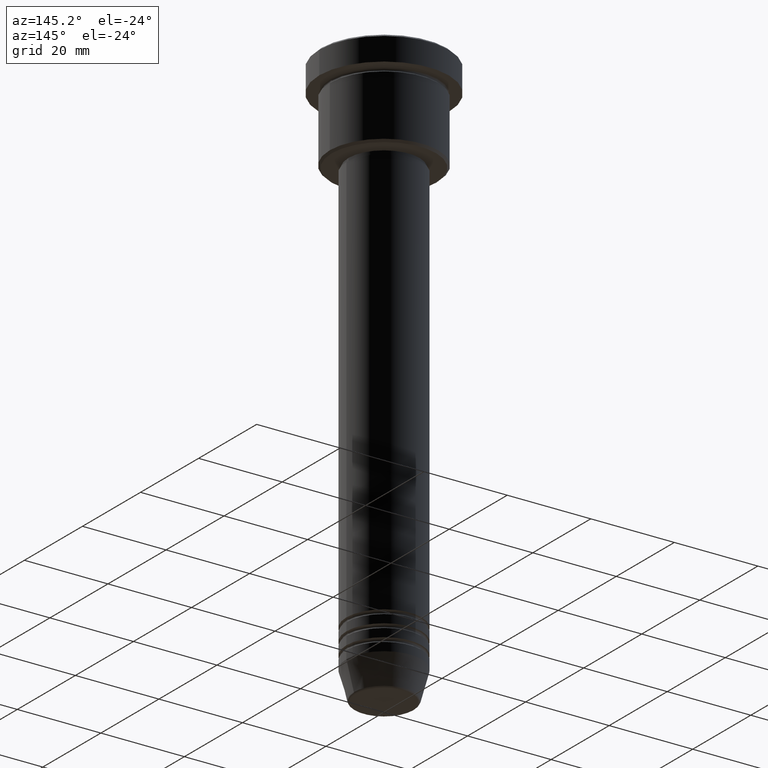
[diagram: clean part render]
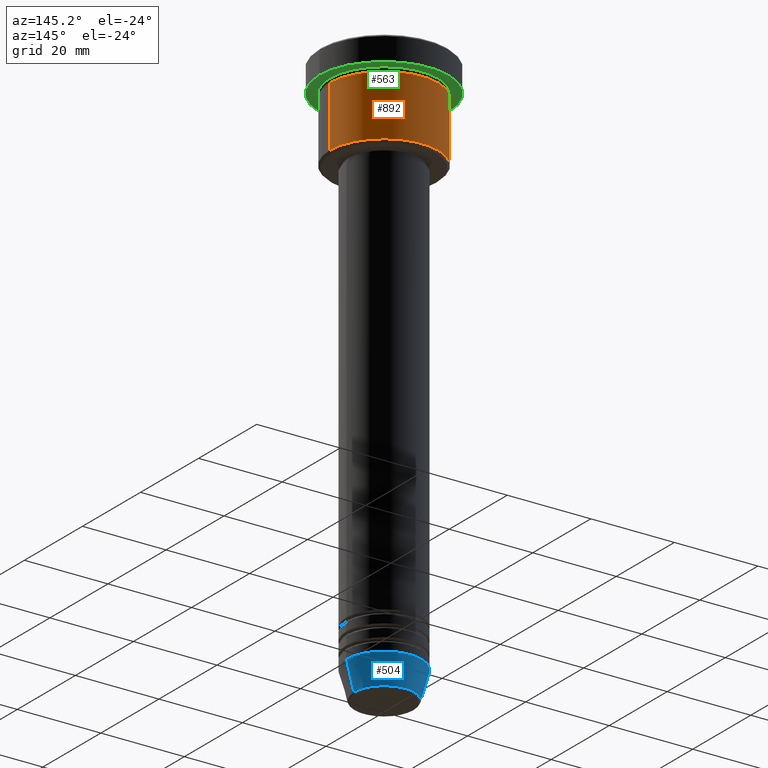
[diagram: same view with three faces highlighted in distinct colors, each labeled with its STEP entity id]
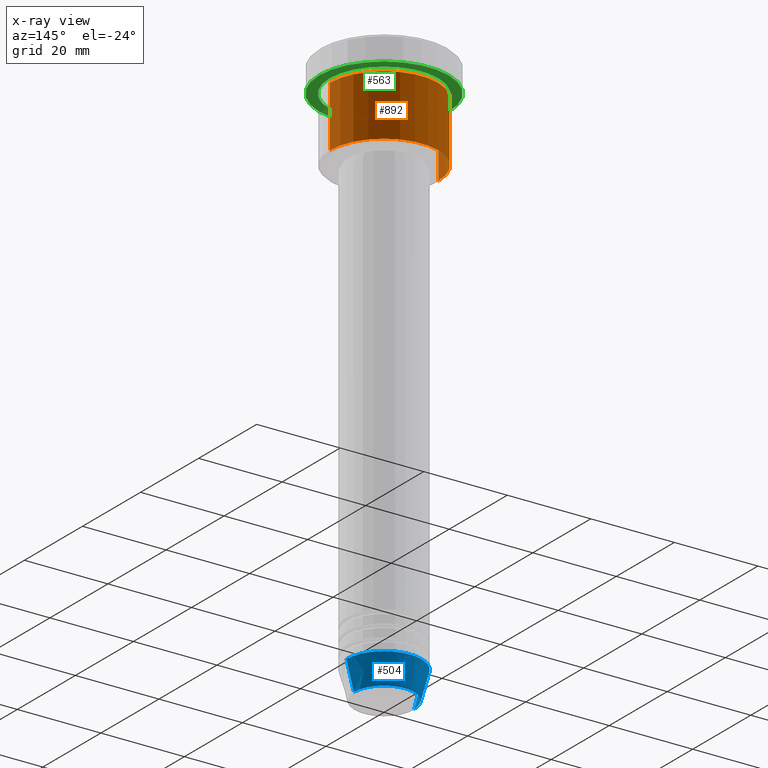
[diagram: x-ray of the same camera — body ghosted, the three highlighted faces saturated]
A machine part, auxiliary view with three faces highlighted in distinct colors.
The next image is the same camera in x-ray (body ghosted, the three faces saturated) — at least one of them is partly hidden behind the body in this view.
Their STEP definitions:

[orange] entity #892 — the highlighted cylindrical surface (partial cylindrical patch) has radius 13 mm, axis along (-0, -0, 1).
#6 = DIRECTION ( 'NONE',  ( -0.000000000000000000, -0.000000000000000000, 1.000000000000000000 ) ) ;
#8 = ORIENTED_EDGE ( 'NONE', *, *, #388, .F. ) ;
#16 = CARTESIAN_POINT ( 'NONE',  ( 0.000000000000000000, 0.000000000000000000, -6.999999999999995559 ) ) ;
#67 = CARTESIAN_POINT ( 'NONE',  ( 13.00000000000000000, 0.000000000000000000, -21.49999999999996092 ) ) ;
#107 = CARTESIAN_POINT ( 'NONE',  ( 13.00000000000000000, 0.000000000000000000, 0.000000000000000000 ) ) ;
#174 = CARTESIAN_POINT ( 'NONE',  ( -13.00000000000000000, 1.592040838891559095E-15, -21.49999999999996092 ) ) ;
#191 = DIRECTION ( 'NONE',  ( -0.000000000000000000, -0.000000000000000000, 1.000000000000000000 ) ) ;
#192 = CIRCLE ( 'NONE', #596, 13.00000000000000000 ) ;
#205 = FACE_OUTER_BOUND ( 'NONE', #300, .T. ) ;
#224 = DIRECTION ( 'NONE',  ( 1.000000000000000000, 0.000000000000000000, 0.000000000000000000 ) ) ;
#300 = EDGE_LOOP ( 'NONE', ( #303, #584, #8, #1044 ) ) ;
#303 = ORIENTED_EDGE ( 'NONE', *, *, #586, .T. ) ;
#320 = AXIS2_PLACEMENT_3D ( 'NONE', #16, #1035, #224 ) ;
#346 = DIRECTION ( 'NONE',  ( -0.000000000000000000, -0.000000000000000000, 1.000000000000000000 ) ) ;
#370 = DIRECTION ( 'NONE',  ( -0.000000000000000000, -0.000000000000000000, 1.000000000000000000 ) ) ;
#378 = CYLINDRICAL_SURFACE ( 'NONE', #997, 13.00000000000000000 ) ;
#388 = EDGE_CURVE ( 'NONE', #770, #832, #580, .T. ) ;
#477 = VECTOR ( 'NONE', #191, 1000.000000000000000 ) ;
#580 = CIRCLE ( 'NONE', #320, 13.00000000000000000 ) ;
#584 = ORIENTED_EDGE ( 'NONE', *, *, #928, .T. ) ;
#586 = EDGE_CURVE ( 'NONE', #1148, #828, #192, .T. ) ;
#596 = AXIS2_PLACEMENT_3D ( 'NONE', #890, #370, #790 ) ;
#601 = CARTESIAN_POINT ( 'NONE',  ( 13.00000000000000000, 0.000000000000000000, -6.999999999999995559 ) ) ;
#735 = DIRECTION ( 'NONE',  ( 1.000000000000000000, 0.000000000000000000, 0.000000000000000000 ) ) ;
#770 = VERTEX_POINT ( 'NONE', #601 ) ;
#790 = DIRECTION ( 'NONE',  ( -1.000000000000000000, 0.000000000000000000, 0.000000000000000000 ) ) ;
#820 = VECTOR ( 'NONE', #346, 1000.000000000000000 ) ;
#828 = VERTEX_POINT ( 'NONE', #174 ) ;
#832 = VERTEX_POINT ( 'NONE', #898 ) ;
#870 = EDGE_CURVE ( 'NONE', #1148, #770, #914, .T. ) ;
#890 = CARTESIAN_POINT ( 'NONE',  ( 0.000000000000000000, 0.000000000000000000, -21.49999999999996092 ) ) ;
#892 = ADVANCED_FACE ( 'NONE', ( #205 ), #378, .T. ) ;
#898 = CARTESIAN_POINT ( 'NONE',  ( -13.00000000000000000, 1.592040838891559095E-15, -6.999999999999995559 ) ) ;
#914 = LINE ( 'NONE', #107, #820 ) ;
#928 = EDGE_CURVE ( 'NONE', #828, #832, #1135, .T. ) ;
#997 = AXIS2_PLACEMENT_3D ( 'NONE', #1010, #6, #735 ) ;
#1010 = CARTESIAN_POINT ( 'NONE',  ( 0.000000000000000000, 0.000000000000000000, 0.000000000000000000 ) ) ;
#1035 = DIRECTION ( 'NONE',  ( -0.000000000000000000, -0.000000000000000000, 1.000000000000000000 ) ) ;
#1044 = ORIENTED_EDGE ( 'NONE', *, *, #870, .F. ) ;
#1135 = LINE ( 'NONE', #1163, #477 ) ;
#1148 = VERTEX_POINT ( 'NONE', #67 ) ;
#1163 = CARTESIAN_POINT ( 'NONE',  ( -13.00000000000000000, 1.592040838891559095E-15, 0.000000000000000000 ) ) ;

[blue] entity #504 — the highlighted conical surface has half-angle 15 deg.
#59 = FACE_OUTER_BOUND ( 'NONE', #221, .T. ) ;
#80 = CARTESIAN_POINT ( 'NONE',  ( 0.000000000000000000, 0.000000000000000000, -136.6294095225512990 ) ) ;
#221 = EDGE_LOOP ( 'NONE', ( #1168, #289, #573, #369 ) ) ;
#241 = VERTEX_POINT ( 'NONE', #893 ) ;
#289 = ORIENTED_EDGE ( 'NONE', *, *, #1069, .T. ) ;
#360 = DIRECTION ( 'NONE',  ( 0.2588190451025213501, 0.000000000000000000, 0.9659258262890680902 ) ) ;
#369 = ORIENTED_EDGE ( 'NONE', *, *, #827, .F. ) ;
#373 = DIRECTION ( 'NONE',  ( 1.000000000000000000, 0.000000000000000000, 0.000000000000000000 ) ) ;
#394 = AXIS2_PLACEMENT_3D ( 'NONE', #583, #848, #1041 ) ;
#415 = VECTOR ( 'NONE', #808, 1000.000000000000000 ) ;
#419 = VERTEX_POINT ( 'NONE', #933 ) ;
#442 = CARTESIAN_POINT ( 'NONE',  ( 9.000000000000000000, 0.000000000000000000, -130.0000000000000000 ) ) ;
#466 = CARTESIAN_POINT ( 'NONE',  ( -7.223655072137189492, 9.934123627281765110E-16, -136.6294095225512990 ) ) ;
#489 = DIRECTION ( 'NONE',  ( -0.000000000000000000, -0.000000000000000000, 1.000000000000000000 ) ) ;
#504 = ADVANCED_FACE ( 'NONE', ( #59 ), #1137, .T. ) ;
#535 = LINE ( 'NONE', #442, #715 ) ;
#567 = VERTEX_POINT ( 'NONE', #1072 ) ;
#573 = ORIENTED_EDGE ( 'NONE', *, *, #973, .F. ) ;
#583 = CARTESIAN_POINT ( 'NONE',  ( 0.000000000000000000, 0.000000000000000000, -130.0000000000000000 ) ) ;
#715 = VECTOR ( 'NONE', #360, 1000.000000000000000 ) ;
#765 = CIRCLE ( 'NONE', #1042, 7.223655072137188604 ) ;
#801 = CARTESIAN_POINT ( 'NONE',  ( -9.000000000000000000, 1.102182119232617714E-15, -130.0000000000000000 ) ) ;
#808 = DIRECTION ( 'NONE',  ( -0.2588190451025213501, 3.169619151431772337E-17, 0.9659258262890680902 ) ) ;
#809 = EDGE_CURVE ( 'NONE', #241, #1019, #765, .T. ) ;
#827 = EDGE_CURVE ( 'NONE', #241, #567, #535, .T. ) ;
#848 = DIRECTION ( 'NONE',  ( -0.000000000000000000, -0.000000000000000000, 1.000000000000000000 ) ) ;
#893 = CARTESIAN_POINT ( 'NONE',  ( 7.223655072137188604, 0.000000000000000000, -136.6294095225512990 ) ) ;
#905 = AXIS2_PLACEMENT_3D ( 'NONE', #1032, #489, #1120 ) ;
#933 = CARTESIAN_POINT ( 'NONE',  ( -9.000000000000000000, 1.102182119232617714E-15, -130.0000000000000000 ) ) ;
#973 = EDGE_CURVE ( 'NONE', #567, #419, #1026, .T. ) ;
#987 = DIRECTION ( 'NONE',  ( -0.000000000000000000, -0.000000000000000000, 1.000000000000000000 ) ) ;
#1015 = LINE ( 'NONE', #801, #415 ) ;
#1019 = VERTEX_POINT ( 'NONE', #466 ) ;
#1026 = CIRCLE ( 'NONE', #905, 9.000000000000000000 ) ;
#1032 = CARTESIAN_POINT ( 'NONE',  ( 0.000000000000000000, 0.000000000000000000, -130.0000000000000000 ) ) ;
#1041 = DIRECTION ( 'NONE',  ( 1.000000000000000000, 0.000000000000000000, 0.000000000000000000 ) ) ;
#1042 = AXIS2_PLACEMENT_3D ( 'NONE', #80, #987, #373 ) ;
#1069 = EDGE_CURVE ( 'NONE', #1019, #419, #1015, .T. ) ;
#1072 = CARTESIAN_POINT ( 'NONE',  ( 9.000000000000000000, 0.000000000000000000, -130.0000000000000000 ) ) ;
#1120 = DIRECTION ( 'NONE',  ( 1.000000000000000000, 0.000000000000000000, 0.000000000000000000 ) ) ;
#1137 = CONICAL_SURFACE ( 'NONE', #394, 9.000000000000000000, 0.2617993877991500740 ) ;
#1168 = ORIENTED_EDGE ( 'NONE', *, *, #809, .T. ) ;

[green] entity #563 — the highlighted planar face has unit normal (0, 0, -1).
#36 = DIRECTION ( 'NONE',  ( -1.000000000000000000, 0.000000000000000000, 0.000000000000000000 ) ) ;
#116 = CIRCLE ( 'NONE', #856, 13.00000000000000000 ) ;
#121 = AXIS2_PLACEMENT_3D ( 'NONE', #402, #313, #229 ) ;
#122 = DIRECTION ( 'NONE',  ( -1.000000000000000000, 0.000000000000000000, 0.000000000000000000 ) ) ;
#130 = VERTEX_POINT ( 'NONE', #344 ) ;
#141 = CARTESIAN_POINT ( 'NONE',  ( 0.000000000000000000, 0.000000000000000000, -5.999999999999995559 ) ) ;
#186 = EDGE_LOOP ( 'NONE', ( #897, #1059 ) ) ;
#229 = DIRECTION ( 'NONE',  ( 1.000000000000000000, 0.000000000000000000, 0.000000000000000000 ) ) ;
#260 = VERTEX_POINT ( 'NONE', #542 ) ;
#278 = CARTESIAN_POINT ( 'NONE',  ( -13.00000000000000000, 0.000000000000000000, -5.999999999999994671 ) ) ;
#313 = DIRECTION ( 'NONE',  ( -0.000000000000000000, -0.000000000000000000, 1.000000000000000000 ) ) ;
#316 = DIRECTION ( 'NONE',  ( 1.000000000000000000, 0.000000000000000000, 0.000000000000000000 ) ) ;
#319 = EDGE_CURVE ( 'NONE', #1011, #130, #418, .T. ) ;
#330 = DIRECTION ( 'NONE',  ( -0.000000000000000000, -0.000000000000000000, 1.000000000000000000 ) ) ;
#344 = CARTESIAN_POINT ( 'NONE',  ( 15.50000000000000000, 0.000000000000000000, -5.999999999999995559 ) ) ;
#377 = AXIS2_PLACEMENT_3D ( 'NONE', #141, #330, #316 ) ;
#402 = CARTESIAN_POINT ( 'NONE',  ( 0.000000000000000000, 0.000000000000000000, -5.999999999999995559 ) ) ;
#410 = FACE_BOUND ( 'NONE', #908, .T. ) ;
#418 = CIRCLE ( 'NONE', #121, 15.50000000000000000 ) ;
#436 = EDGE_CURVE ( 'NONE', #260, #628, #116, .T. ) ;
#472 = DIRECTION ( 'NONE',  ( -0.000000000000000000, -0.000000000000000000, 1.000000000000000000 ) ) ;
#494 = CARTESIAN_POINT ( 'NONE',  ( 0.000000000000000000, 0.000000000000000000, -5.999999999999995559 ) ) ;
#520 = EDGE_CURVE ( 'NONE', #130, #1011, #764, .T. ) ;
#542 = CARTESIAN_POINT ( 'NONE',  ( 13.00000000000000000, 1.592040838891559095E-15, -5.999999999999994671 ) ) ;
#549 = CIRCLE ( 'NONE', #614, 13.00000000000000000 ) ;
#563 = ADVANCED_FACE ( 'NONE', ( #410, #762 ), #682, .T. ) ;
#564 = DIRECTION ( 'NONE',  ( -0.000000000000000000, -0.000000000000000000, 1.000000000000000000 ) ) ;
#614 = AXIS2_PLACEMENT_3D ( 'NONE', #494, #472, #36 ) ;
#628 = VERTEX_POINT ( 'NONE', #278 ) ;
#638 = CARTESIAN_POINT ( 'NONE',  ( -15.50000000000000000, 1.898202538678397557E-15, -5.999999999999995559 ) ) ;
#668 = ORIENTED_EDGE ( 'NONE', *, *, #436, .T. ) ;
#682 = PLANE ( 'NONE',  #1079 ) ;
#762 = FACE_OUTER_BOUND ( 'NONE', #186, .T. ) ;
#764 = CIRCLE ( 'NONE', #377, 15.50000000000000000 ) ;
#856 = AXIS2_PLACEMENT_3D ( 'NONE', #1102, #564, #122 ) ;
#897 = ORIENTED_EDGE ( 'NONE', *, *, #520, .F. ) ;
#908 = EDGE_LOOP ( 'NONE', ( #1146, #668 ) ) ;
#950 = DIRECTION ( 'NONE',  ( 0.000000000000000000, 0.000000000000000000, -1.000000000000000000 ) ) ;
#992 = DIRECTION ( 'NONE',  ( -1.000000000000000000, 0.000000000000000000, -0.000000000000000000 ) ) ;
#996 = EDGE_CURVE ( 'NONE', #628, #260, #549, .T. ) ;
#1011 = VERTEX_POINT ( 'NONE', #638 ) ;
#1051 = CARTESIAN_POINT ( 'NONE',  ( 0.000000000000000000, 15.50000000000000000, -5.999999999999995559 ) ) ;
#1059 = ORIENTED_EDGE ( 'NONE', *, *, #319, .F. ) ;
#1079 = AXIS2_PLACEMENT_3D ( 'NONE', #1051, #950, #992 ) ;
#1102 = CARTESIAN_POINT ( 'NONE',  ( 0.000000000000000000, 0.000000000000000000, -5.999999999999995559 ) ) ;
#1146 = ORIENTED_EDGE ( 'NONE', *, *, #996, .T. ) ;